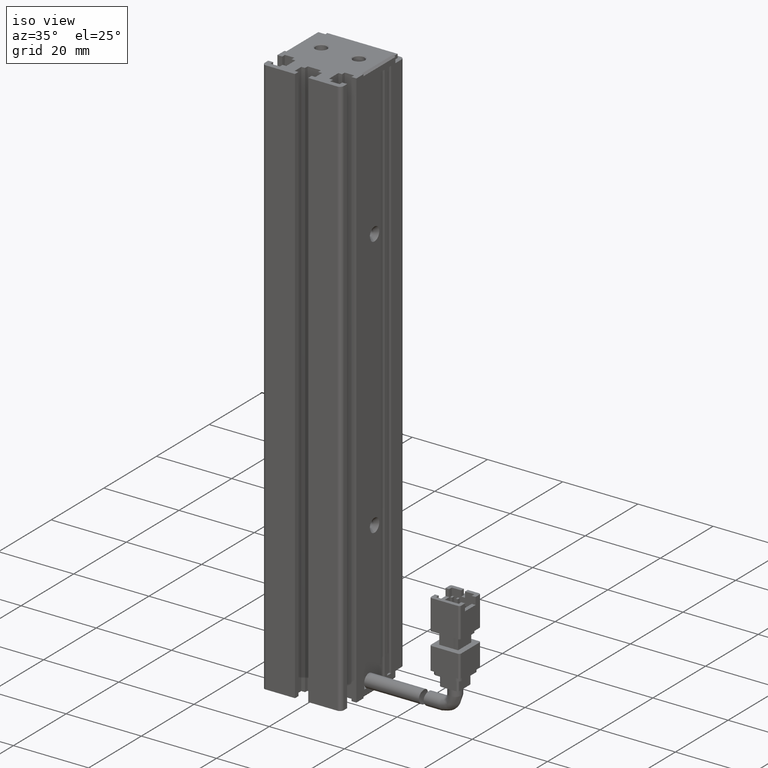
[diagram: clean part render]
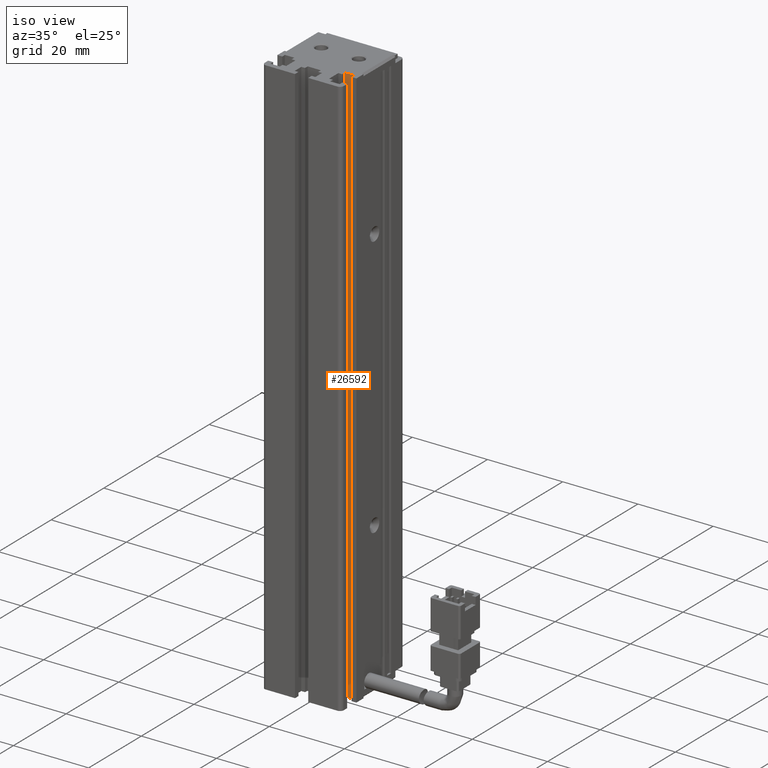
[diagram: same view with one face highlighted and labeled with its STEP entity id]
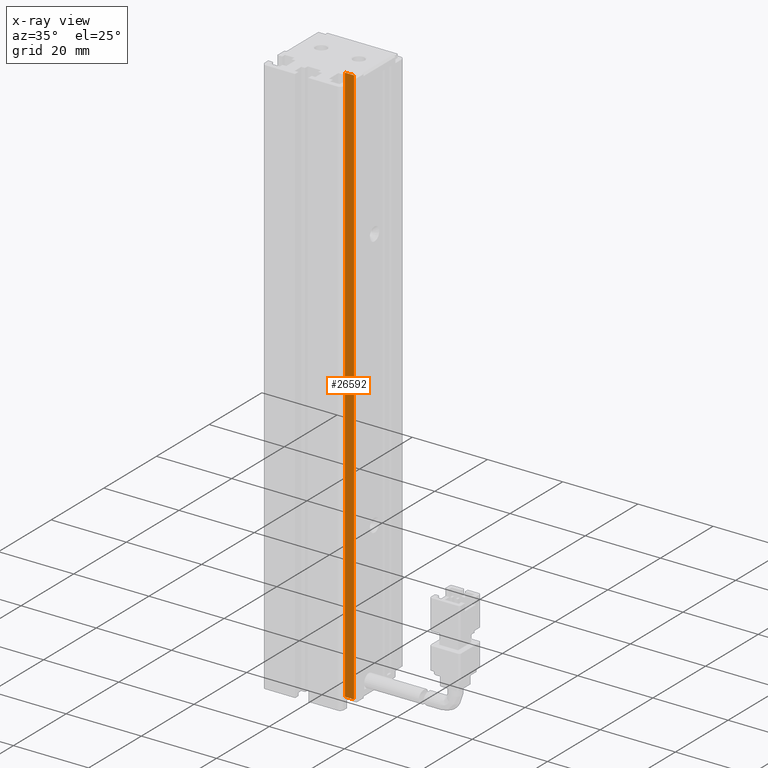
[diagram: x-ray of the same camera — body ghosted, the highlighted face saturated]
A machine part, iso view. The second image highlights one B-rep face of the part: STEP entity #26592.
The next image is the same camera in x-ray: the body ghosted, the highlighted face saturated — about 0% of this face is hidden behind the body in this view.
In plain terms, the highlighted planar face has unit normal (0, -1, 0).
Its self-contained STEP definition (entity closure, byte-faithful):
#1712 = ORIENTED_EDGE ( 'NONE', *, *, #17845, .T. ) ;
#2523 = LINE ( 'NONE', #17793, #15704 ) ;
#2792 = LINE ( 'NONE', #8226, #12944 ) ;
#5424 = VERTEX_POINT ( 'NONE', #16443 ) ;
#8226 = CARTESIAN_POINT ( 'NONE',  ( 47.62537974683541400, 17.79073232304837400, -40.00000000000000700 ) ) ;
#11368 = LINE ( 'NONE', #34720, #33831 ) ;
#11608 = VECTOR ( 'NONE', #24023, 1000.000000000000000 ) ;
#12529 = EDGE_LOOP ( 'NONE', ( #14465, #37978, #24632, #1712 ) ) ;
#12615 = DIRECTION ( 'NONE',  ( 0.0000000000000000000, -1.000000000000000000, 0.0000000000000000000 ) ) ;
#12944 = VECTOR ( 'NONE', #33984, 1000.000000000000000 ) ;
#13588 = CARTESIAN_POINT ( 'NONE',  ( 50.12537974683542100, 17.79073232304837400, -190.0000000000000000 ) ) ;
#13760 = EDGE_CURVE ( 'NONE', #25241, #24602, #14105, .T. ) ;
#14105 = LINE ( 'NONE', #17727, #11608 ) ;
#14465 = ORIENTED_EDGE ( 'NONE', *, *, #13760, .F. ) ;
#15704 = VECTOR ( 'NONE', #24094, 1000.000000000000000 ) ;
#15867 = DIRECTION ( 'NONE',  ( 0.0000000000000000000, -0.0000000000000000000, -1.000000000000000000 ) ) ;
#16443 = CARTESIAN_POINT ( 'NONE',  ( 47.62537974683541400, 17.79073232304837400, -190.0000000000000000 ) ) ;
#16782 = AXIS2_PLACEMENT_3D ( 'NONE', #32247, #12615, #15867 ) ;
#17727 = CARTESIAN_POINT ( 'NONE',  ( 40.92537974683542500, 17.79073232304837400, -40.00000000000000700 ) ) ;
#17793 = CARTESIAN_POINT ( 'NONE',  ( 50.12537974683542100, 17.79073232304837400, -40.00000000000000700 ) ) ;
#17845 = EDGE_CURVE ( 'NONE', #28868, #24602, #2523, .T. ) ;
#18889 = EDGE_CURVE ( 'NONE', #25241, #5424, #2792, .T. ) ;
#24023 = DIRECTION ( 'NONE',  ( 1.000000000000000000, 0.0000000000000000000, 0.0000000000000000000 ) ) ;
#24094 = DIRECTION ( 'NONE',  ( -0.0000000000000000000, 0.0000000000000000000, 1.000000000000000000 ) ) ;
#24602 = VERTEX_POINT ( 'NONE', #32720 ) ;
#24632 = ORIENTED_EDGE ( 'NONE', *, *, #28563, .T. ) ;
#25241 = VERTEX_POINT ( 'NONE', #29777 ) ;
#26592 = ADVANCED_FACE ( 'NONE', ( #35160 ), #32119, .T. ) ;
#28563 = EDGE_CURVE ( 'NONE', #5424, #28868, #11368, .T. ) ;
#28868 = VERTEX_POINT ( 'NONE', #13588 ) ;
#29777 = CARTESIAN_POINT ( 'NONE',  ( 47.62537974683541400, 17.79073232304837400, -40.00000000000000700 ) ) ;
#32119 = PLANE ( 'NONE',  #16782 ) ;
#32247 = CARTESIAN_POINT ( 'NONE',  ( 40.92537974683542500, 17.79073232304837400, -40.00000000000000700 ) ) ;
#32720 = CARTESIAN_POINT ( 'NONE',  ( 50.12537974683542100, 17.79073232304837400, -40.00000000000000700 ) ) ;
#33831 = VECTOR ( 'NONE', #38563, 1000.000000000000000 ) ;
#33984 = DIRECTION ( 'NONE',  ( 0.0000000000000000000, -0.0000000000000000000, -1.000000000000000000 ) ) ;
#34720 = CARTESIAN_POINT ( 'NONE',  ( 40.92537974683542500, 17.79073232304837400, -190.0000000000000000 ) ) ;
#35160 = FACE_OUTER_BOUND ( 'NONE', #12529, .T. ) ;
#37978 = ORIENTED_EDGE ( 'NONE', *, *, #18889, .T. ) ;
#38563 = DIRECTION ( 'NONE',  ( 1.000000000000000000, 0.0000000000000000000, 0.0000000000000000000 ) ) ;